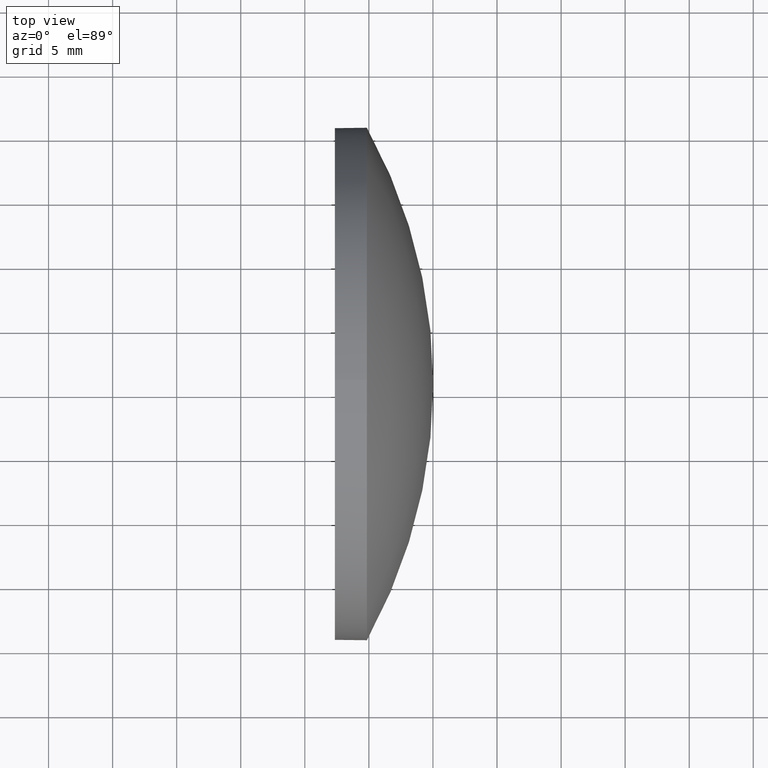
[diagram: clean part render]
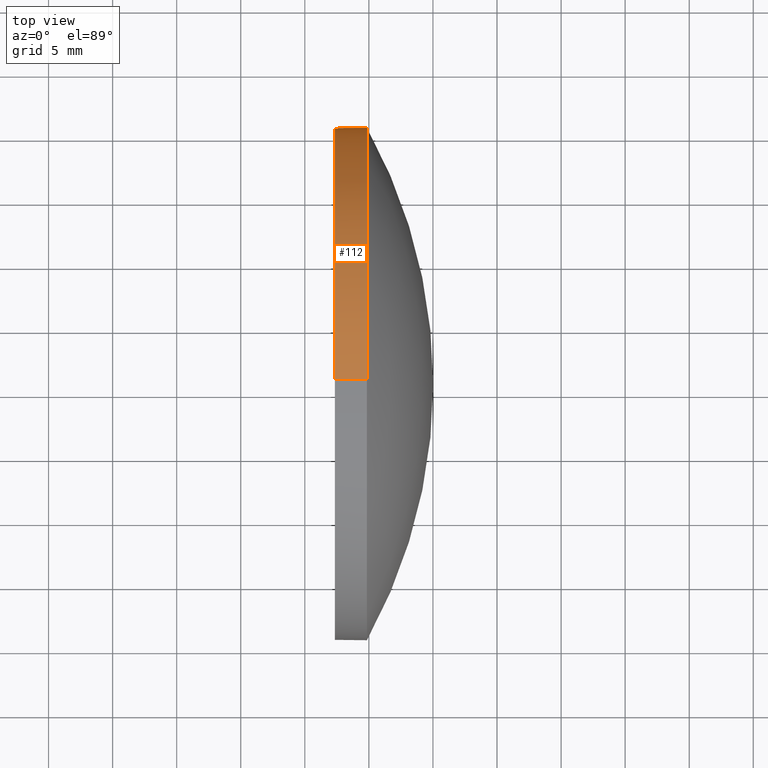
[diagram: same view with one face highlighted and labeled with its STEP entity id]
A machine part, top view. The second image highlights one B-rep face of the part: STEP entity #112.
In plain terms, the highlighted cylindrical surface (partial cylindrical patch) has radius 20 mm, axis along (-1, -0, -0).
Its self-contained STEP definition (entity closure, byte-faithful):
#2 = DIRECTION ( 'NONE',  ( 0.0000000000000000000, 0.0000000000000000000, 1.000000000000000000 ) ) ;
#9 = LINE ( 'NONE', #152, #27 ) ;
#10 = CARTESIAN_POINT ( 'NONE',  ( 447.3436897934086600, 15.68604631740493000, 0.0000000000000000000 ) ) ;
#12 = AXIS2_PLACEMENT_3D ( 'NONE', #130, #41, #77 ) ;
#15 = ORIENTED_EDGE ( 'NONE', *, *, #178, .F. ) ;
#16 = ORIENTED_EDGE ( 'NONE', *, *, #123, .T. ) ;
#23 = CIRCLE ( 'NONE', #180, 19.99999999999999600 ) ;
#27 = VECTOR ( 'NONE', #72, 1000.000000000000000 ) ;
#36 = EDGE_CURVE ( 'NONE', #90, #107, #9, .T. ) ;
#37 = DIRECTION ( 'NONE',  ( -1.000000000000000000, -0.0000000000000000000, -0.0000000000000000000 ) ) ;
#40 = EDGE_CURVE ( 'NONE', #145, #99, #166, .T. ) ;
#41 = DIRECTION ( 'NONE',  ( -1.000000000000000000, -0.0000000000000000000, -0.0000000000000000000 ) ) ;
#49 = EDGE_CURVE ( 'NONE', #181, #145, #23, .T. ) ;
#69 = CARTESIAN_POINT ( 'NONE',  ( 442.6491466128316000, 15.68604631740493400, -19.99999999999999600 ) ) ;
#72 = DIRECTION ( 'NONE',  ( -1.000000000000000000, -0.0000000000000000000, -0.0000000000000000000 ) ) ;
#76 = DIRECTION ( 'NONE',  ( -1.000000000000000000, -0.0000000000000000000, -0.0000000000000000000 ) ) ;
#77 = DIRECTION ( 'NONE',  ( 0.0000000000000000000, 0.0000000000000000000, 1.000000000000000000 ) ) ;
#79 = DIRECTION ( 'NONE',  ( 0.0000000000000000000, 0.0000000000000000000, 1.000000000000000000 ) ) ;
#84 = ORIENTED_EDGE ( 'NONE', *, *, #49, .T. ) ;
#86 = CYLINDRICAL_SURFACE ( 'NONE', #127, 19.99999999999999600 ) ;
#90 = VERTEX_POINT ( 'NONE', #171 ) ;
#91 = DIRECTION ( 'NONE',  ( -1.000000000000000000, -0.0000000000000000000, -0.0000000000000000000 ) ) ;
#92 = DIRECTION ( 'NONE',  ( 0.0000000000000000000, 0.0000000000000000000, 1.000000000000000000 ) ) ;
#94 = FACE_OUTER_BOUND ( 'NONE', #113, .T. ) ;
#99 = VERTEX_POINT ( 'NONE', #144 ) ;
#107 = VERTEX_POINT ( 'NONE', #159 ) ;
#112 = ADVANCED_FACE ( 'NONE', ( #94 ), #86, .T. ) ;
#113 = EDGE_LOOP ( 'NONE', ( #84, #137, #15, #168, #16 ) ) ;
#115 = CIRCLE ( 'NONE', #170, 19.99999999999999600 ) ;
#122 = VECTOR ( 'NONE', #154, 1000.000000000000000 ) ;
#123 = EDGE_CURVE ( 'NONE', #90, #181, #169, .T. ) ;
#124 = CARTESIAN_POINT ( 'NONE',  ( 449.8436897934086600, 35.68604631740493700, 0.0000000000000000000 ) ) ;
#127 = AXIS2_PLACEMENT_3D ( 'NONE', #157, #76, #92 ) ;
#130 = CARTESIAN_POINT ( 'NONE',  ( 449.8436897934086600, 15.68604631740493000, 0.0000000000000000000 ) ) ;
#137 = ORIENTED_EDGE ( 'NONE', *, *, #40, .T. ) ;
#144 = CARTESIAN_POINT ( 'NONE',  ( 447.3436897934086600, 15.68604631740493400, -19.99999999999999600 ) ) ;
#145 = VERTEX_POINT ( 'NONE', #179 ) ;
#152 = CARTESIAN_POINT ( 'NONE',  ( 442.6491466128316000, 15.68604631740493000, 19.99999999999999600 ) ) ;
#154 = DIRECTION ( 'NONE',  ( -1.000000000000000000, -0.0000000000000000000, -0.0000000000000000000 ) ) ;
#157 = CARTESIAN_POINT ( 'NONE',  ( 442.6491466128316000, 15.68604631740493000, 0.0000000000000000000 ) ) ;
#159 = CARTESIAN_POINT ( 'NONE',  ( 447.3436897934086600, 15.68604631740493000, 19.99999999999999600 ) ) ;
#166 = LINE ( 'NONE', #69, #122 ) ;
#168 = ORIENTED_EDGE ( 'NONE', *, *, #36, .F. ) ;
#169 = CIRCLE ( 'NONE', #12, 19.99999999999999600 ) ;
#170 = AXIS2_PLACEMENT_3D ( 'NONE', #10, #37, #79 ) ;
#171 = CARTESIAN_POINT ( 'NONE',  ( 449.8436897934086600, 15.68604631740493000, 19.99999999999999600 ) ) ;
#174 = CARTESIAN_POINT ( 'NONE',  ( 449.8436897934086600, 15.68604631740493000, 0.0000000000000000000 ) ) ;
#178 = EDGE_CURVE ( 'NONE', #107, #99, #115, .T. ) ;
#179 = CARTESIAN_POINT ( 'NONE',  ( 449.8436897934086600, 15.68604631740493400, -19.99999999999999600 ) ) ;
#180 = AXIS2_PLACEMENT_3D ( 'NONE', #174, #91, #2 ) ;
#181 = VERTEX_POINT ( 'NONE', #124 ) ;